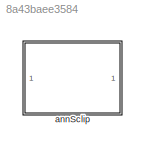
MODEL slx_8a43baee3584
KIND library
CONFIG AbsTol = auto
CONFIG EnableMultiTasking = off
CONFIG FixedStep = auto
CONFIG MaxStep = auto
CONFIG MinStep = auto
CONFIG RelTol = 1e-3
CONFIG SampleTimeConstraint = Unconstrained
CONFIG SolverName = VariableStepAuto
CONFIG StartTime = 0.0
CONFIG StopTime = 10.0
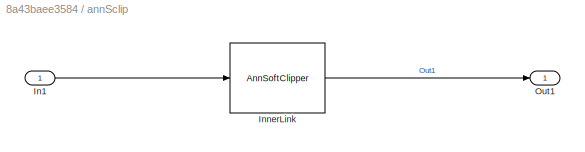
BLOCK [SubSystem] annSclip
BLOCK [Inport] annSclip/In1
BLOCK [Reference] annSclip/InnerLink  REF=AnnSoftClipperBtc/AnnSoftClipper
  SourceBlock = AnnSoftClipperBtc/AnnSoftClipper
  SourceProductName = Bose Blocklib
  SourceType = Blocklib AnnSoftClipper
BLOCK [Outport] annSclip/Out1
LINE annSclip/In1:1 -> annSclip/InnerLink:1
LINE annSclip/InnerLink:1 -> annSclip/Out1:1
